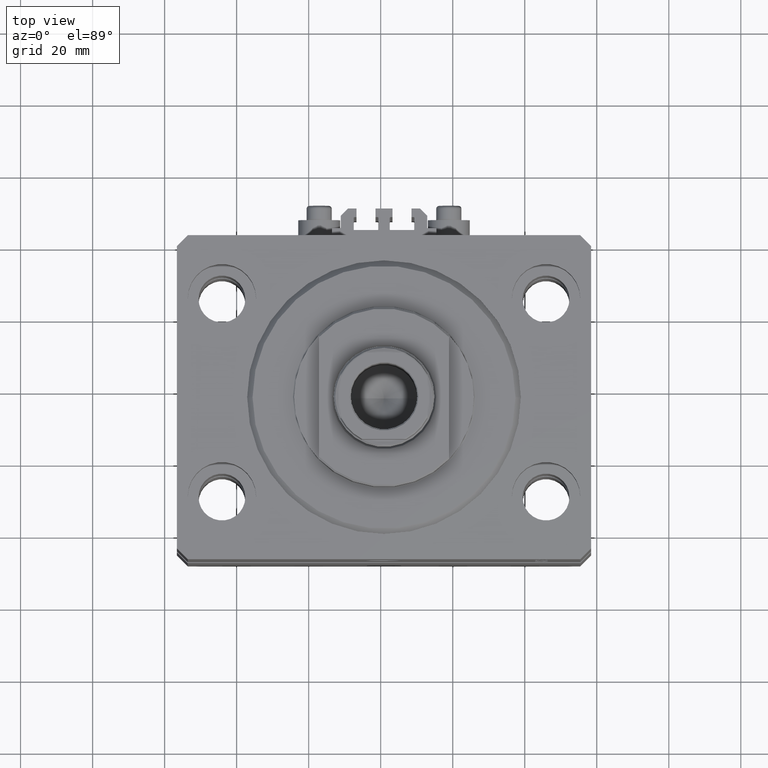
[diagram: clean part render]
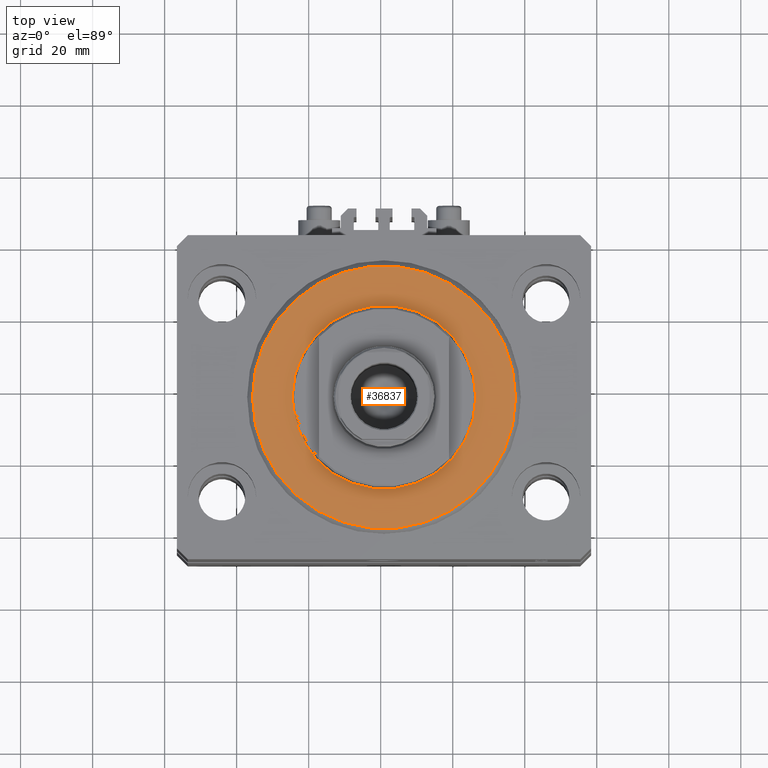
[diagram: same view with one face highlighted and labeled with its STEP entity id]
A machine part, top view. The second image highlights one B-rep face of the part: STEP entity #36837.
In plain terms, the highlighted planar face has unit normal (0, 0, -1).
Its self-contained STEP definition (entity closure, byte-faithful):
#3919 = CARTESIAN_POINT ( 'NONE',  ( -25.50000000000000355, 3.122849337825751011E-15, 2.168404344971008868E-16 ) ) ;
#5503 = FACE_OUTER_BOUND ( 'NONE', #26408, .T. ) ;
#5662 = EDGE_LOOP ( 'NONE', ( #22880, #7243 ) ) ;
#6667 = CARTESIAN_POINT ( 'NONE',  ( 0.000000000000000000, 0.000000000000000000, 0.000000000000000000 ) ) ;
#7243 = ORIENTED_EDGE ( 'NONE', *, *, #33180, .T. ) ;
#9378 = DIRECTION ( 'NONE',  ( -0.000000000000000000, -0.000000000000000000, -1.000000000000000000 ) ) ;
#12407 = DIRECTION ( 'NONE',  ( 0.000000000000000000, 0.000000000000000000, 1.000000000000000000 ) ) ;
#13127 = DIRECTION ( 'NONE',  ( 1.000000000000000000, 0.000000000000000000, -0.000000000000000000 ) ) ;
#18685 = AXIS2_PLACEMENT_3D ( 'NONE', #47035, #9378, #43828 ) ;
#19560 = VERTEX_POINT ( 'NONE', #29498 ) ;
#20177 = AXIS2_PLACEMENT_3D ( 'NONE', #25441, #40443, #21767 ) ;
#20319 = EDGE_CURVE ( 'NONE', #27051, #47335, #23633, .T. ) ;
#21025 = CIRCLE ( 'NONE', #18685, 36.50000000000000000 ) ;
#21767 = DIRECTION ( 'NONE',  ( 1.000000000000000000, 0.000000000000000000, 0.000000000000000000 ) ) ;
#22880 = ORIENTED_EDGE ( 'NONE', *, *, #20319, .T. ) ;
#23288 = CARTESIAN_POINT ( 'NONE',  ( 36.50000000000000000, 0.000000000000000000, 0.000000000000000000 ) ) ;
#23633 = CIRCLE ( 'NONE', #26769, 25.50000000000000355 ) ;
#23999 = ORIENTED_EDGE ( 'NONE', *, *, #39260, .T. ) ;
#24886 = DIRECTION ( 'NONE',  ( 0.000000000000000000, 0.000000000000000000, 1.000000000000000000 ) ) ;
#25441 = CARTESIAN_POINT ( 'NONE',  ( 0.000000000000000000, 0.000000000000000000, 0.000000000000000000 ) ) ;
#26408 = EDGE_LOOP ( 'NONE', ( #28642, #23999 ) ) ;
#26769 = AXIS2_PLACEMENT_3D ( 'NONE', #6667, #24886, #28815 ) ;
#27051 = VERTEX_POINT ( 'NONE', #43614 ) ;
#28642 = ORIENTED_EDGE ( 'NONE', *, *, #39470, .T. ) ;
#28815 = DIRECTION ( 'NONE',  ( 1.000000000000000000, 0.000000000000000000, 0.000000000000000000 ) ) ;
#29455 = CIRCLE ( 'NONE', #33370, 25.50000000000000355 ) ;
#29498 = CARTESIAN_POINT ( 'NONE',  ( -36.50000000000000000, 4.561809326823889791E-15, 0.000000000000000000 ) ) ;
#33180 = EDGE_CURVE ( 'NONE', #47335, #27051, #29455, .T. ) ;
#33370 = AXIS2_PLACEMENT_3D ( 'NONE', #47677, #47172, #43718 ) ;
#35055 = CARTESIAN_POINT ( 'NONE',  ( 0.000000000000000000, 0.000000000000000000, 0.000000000000000000 ) ) ;
#36837 = ADVANCED_FACE ( 'NONE', ( #38504, #5503 ), #43142, .F. ) ;
#38504 = FACE_BOUND ( 'NONE', #5662, .T. ) ;
#38965 = AXIS2_PLACEMENT_3D ( 'NONE', #35055, #12407, #13127 ) ;
#39260 = EDGE_CURVE ( 'NONE', #19560, #47119, #41396, .T. ) ;
#39470 = EDGE_CURVE ( 'NONE', #47119, #19560, #21025, .T. ) ;
#40443 = DIRECTION ( 'NONE',  ( -0.000000000000000000, -0.000000000000000000, -1.000000000000000000 ) ) ;
#41396 = CIRCLE ( 'NONE', #20177, 36.50000000000000000 ) ;
#43142 = PLANE ( 'NONE',  #38965 ) ;
#43614 = CARTESIAN_POINT ( 'NONE',  ( 25.50000000000000355, 0.000000000000000000, 2.168404344971008868E-16 ) ) ;
#43718 = DIRECTION ( 'NONE',  ( 1.000000000000000000, 0.000000000000000000, 0.000000000000000000 ) ) ;
#43828 = DIRECTION ( 'NONE',  ( 1.000000000000000000, 0.000000000000000000, 0.000000000000000000 ) ) ;
#47035 = CARTESIAN_POINT ( 'NONE',  ( 0.000000000000000000, 0.000000000000000000, 0.000000000000000000 ) ) ;
#47119 = VERTEX_POINT ( 'NONE', #23288 ) ;
#47172 = DIRECTION ( 'NONE',  ( 0.000000000000000000, 0.000000000000000000, 1.000000000000000000 ) ) ;
#47335 = VERTEX_POINT ( 'NONE', #3919 ) ;
#47677 = CARTESIAN_POINT ( 'NONE',  ( 0.000000000000000000, 0.000000000000000000, 0.000000000000000000 ) ) ;